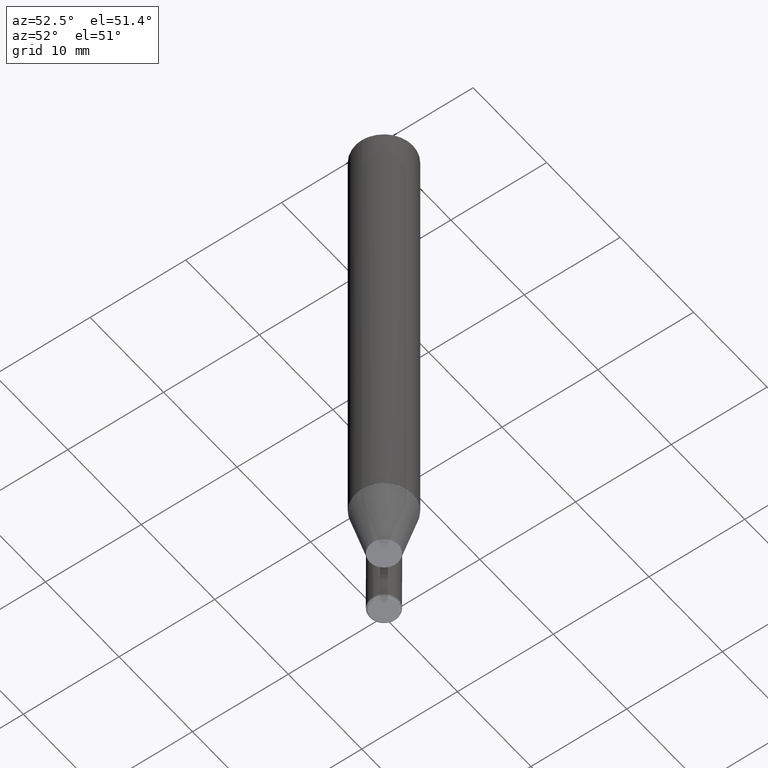
[diagram: clean part render]
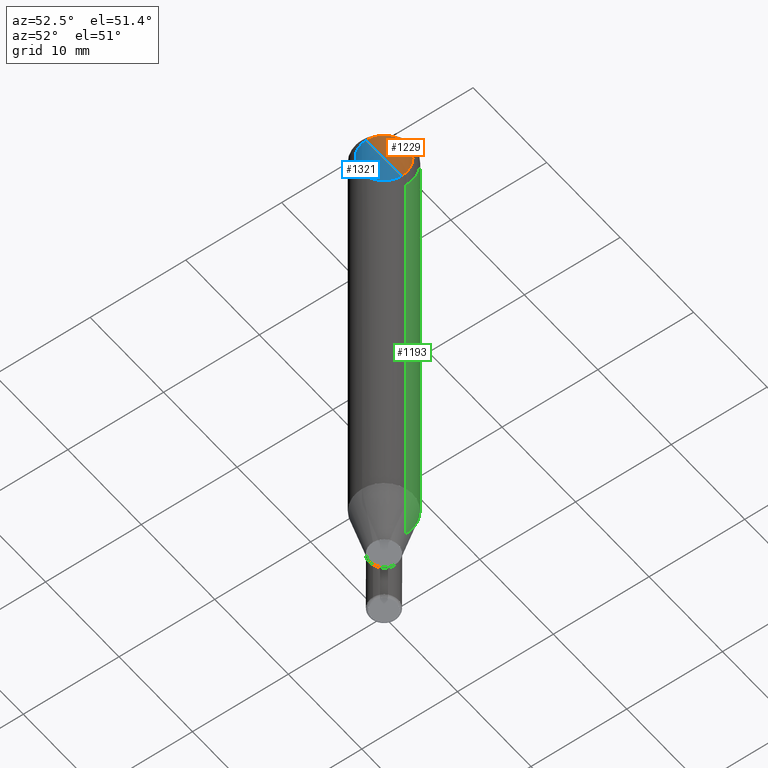
[diagram: same view with three faces highlighted in distinct colors, each labeled with its STEP entity id]
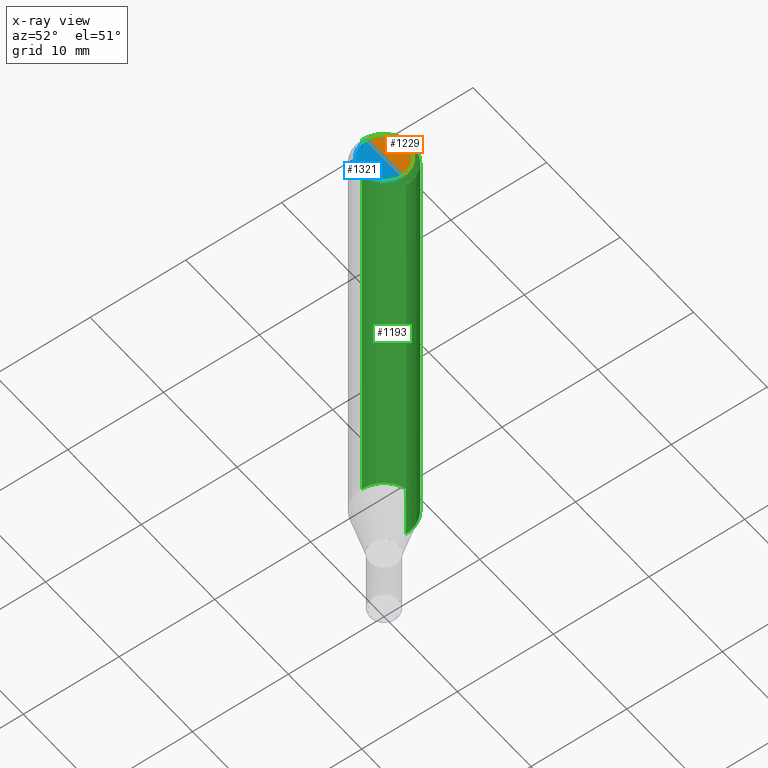
[diagram: x-ray of the same camera — body ghosted, the three highlighted faces saturated]
A machine part, auxiliary view with three faces highlighted in distinct colors.
The next image is the same camera in x-ray (body ghosted, the three faces saturated) — at least one of them is partly hidden behind the body in this view.
Their STEP definitions:

[orange] entity #1229 — the highlighted face is a freeform B-spline surface patch.
#966=CARTESIAN_POINT('',(2.4,0.0,46.901923788647));
#967=CARTESIAN_POINT('',(2.4,2.4,46.901923788647));
#968=CARTESIAN_POINT('',(0.0,2.4,46.901923788647));
#969=CARTESIAN_POINT('',(-2.4,2.4,46.901923788647));
#970=CARTESIAN_POINT('',(-2.4,0.0,46.901923788647));
#971=CARTESIAN_POINT('',(0.0,0.0,46.901923788647));
#1214=(
BOUNDED_SURFACE()
B_SPLINE_SURFACE(1,2,(
(#966,#967,#968,#969,#970),
(#971,#971,#971,#971,#971)
), .UNSPECIFIED.,.F.,.F.,.F.)
B_SPLINE_SURFACE_WITH_KNOTS((2,2),(3,2,3),(
0.0,1.0),(
0.0,0.5,1.0), .UNSPECIFIED.)
GEOMETRIC_REPRESENTATION_ITEM()
RATIONAL_B_SPLINE_SURFACE(((1.0,0.707106781187,1.0,0.707106781187,1.0),
(1.0,0.707106781187,1.0,0.707106781187,1.0)
))
REPRESENTATION_ITEM('')
SURFACE()
);
#1215=(
BOUNDED_CURVE()
B_SPLINE_CURVE(1,(#971,#966),.UNSPECIFIED.,.F.,.F.)
B_SPLINE_CURVE_WITH_KNOTS((2,2),
(0.0,1.0),.UNSPECIFIED.)
CURVE()
GEOMETRIC_REPRESENTATION_ITEM()
RATIONAL_B_SPLINE_CURVE((1.0,1.0))
REPRESENTATION_ITEM('')
);
#1216=(
BOUNDED_CURVE()
B_SPLINE_CURVE(2,(#966,#967,#968,#969,#970),.UNSPECIFIED.,.F.,.F.)
B_SPLINE_CURVE_WITH_KNOTS((3,2,3),
(0.0,0.5,1.0),.UNSPECIFIED.)
CURVE()
GEOMETRIC_REPRESENTATION_ITEM()
RATIONAL_B_SPLINE_CURVE((1.0,0.707106781187,1.0,0.707106781187,1.0))
REPRESENTATION_ITEM('')
);
#1217=(
BOUNDED_CURVE()
B_SPLINE_CURVE(1,(#970,#971),.UNSPECIFIED.,.F.,.F.)
B_SPLINE_CURVE_WITH_KNOTS((2,2),
(0.0,1.0),.UNSPECIFIED.)
CURVE()
GEOMETRIC_REPRESENTATION_ITEM()
RATIONAL_B_SPLINE_CURVE((1.0,1.0))
REPRESENTATION_ITEM('')
);
#1218=VERTEX_POINT('',#966);
#1219=VERTEX_POINT('',#970);
#1220=VERTEX_POINT('',#971);
#1221=EDGE_CURVE('',#1220,#1218,#1215,.T.);
#1222=EDGE_CURVE('',#1218,#1219,#1216,.T.);
#1223=EDGE_CURVE('',#1219,#1220,#1217,.T.);
#1224=ORIENTED_EDGE('',*,*,#1221,.T.);
#1225=ORIENTED_EDGE('',*,*,#1222,.T.);
#1226=ORIENTED_EDGE('',*,*,#1223,.T.);
#1227=EDGE_LOOP('',(#1224,#1225,#1226));
#1228=FACE_OUTER_BOUND('',#1227,.T.);
#1229=ADVANCED_FACE('',(#1228),#1214,.T.);

[blue] entity #1321 — the highlighted face is a freeform B-spline surface patch.
#966=CARTESIAN_POINT('',(2.4,0.0,46.901923788647));
#970=CARTESIAN_POINT('',(-2.4,0.0,46.901923788647));
#971=CARTESIAN_POINT('',(0.0,0.0,46.901923788647));
#978=CARTESIAN_POINT('',(-2.4,-2.4,46.901923788647));
#979=CARTESIAN_POINT('',(0.0,-2.4,46.901923788647));
#980=CARTESIAN_POINT('',(2.4,-2.4,46.901923788647));
#1306=(
BOUNDED_SURFACE()
B_SPLINE_SURFACE(1,2,(
(#970,#978,#979,#980,#966),
(#971,#971,#971,#971,#971)
), .UNSPECIFIED.,.F.,.F.,.F.)
B_SPLINE_SURFACE_WITH_KNOTS((2,2),(3,2,3),(
0.0,1.0),(
0.0,0.5,1.0), .UNSPECIFIED.)
GEOMETRIC_REPRESENTATION_ITEM()
RATIONAL_B_SPLINE_SURFACE(((1.0,0.707106781187,1.0,0.707106781187,1.0),
(1.0,0.707106781187,1.0,0.707106781187,1.0)
))
REPRESENTATION_ITEM('')
SURFACE()
);
#1307=(
BOUNDED_CURVE()
B_SPLINE_CURVE(1,(#971,#966),.UNSPECIFIED.,.F.,.F.)
B_SPLINE_CURVE_WITH_KNOTS((2,2),
(0.0,1.0),.UNSPECIFIED.)
CURVE()
GEOMETRIC_REPRESENTATION_ITEM()
RATIONAL_B_SPLINE_CURVE((1.0,1.0))
REPRESENTATION_ITEM('')
);
#1308=(
BOUNDED_CURVE()
B_SPLINE_CURVE(2,(#966,#980,#979,#978,#970),.UNSPECIFIED.,.F.,.F.)
B_SPLINE_CURVE_WITH_KNOTS((3,2,3),
(0.0,0.5,1.0),.UNSPECIFIED.)
CURVE()
GEOMETRIC_REPRESENTATION_ITEM()
RATIONAL_B_SPLINE_CURVE((1.0,0.707106781187,1.0,0.707106781187,1.0))
REPRESENTATION_ITEM('')
);
#1309=(
BOUNDED_CURVE()
B_SPLINE_CURVE(1,(#970,#971),.UNSPECIFIED.,.F.,.F.)
B_SPLINE_CURVE_WITH_KNOTS((2,2),
(0.0,1.0),.UNSPECIFIED.)
CURVE()
GEOMETRIC_REPRESENTATION_ITEM()
RATIONAL_B_SPLINE_CURVE((1.0,1.0))
REPRESENTATION_ITEM('')
);
#1310=VERTEX_POINT('',#966);
#1311=VERTEX_POINT('',#970);
#1312=VERTEX_POINT('',#971);
#1313=EDGE_CURVE('',#1312,#1310,#1307,.T.);
#1314=EDGE_CURVE('',#1310,#1311,#1308,.T.);
#1315=EDGE_CURVE('',#1311,#1312,#1309,.T.);
#1316=ORIENTED_EDGE('',*,*,#1313,.T.);
#1317=ORIENTED_EDGE('',*,*,#1314,.T.);
#1318=ORIENTED_EDGE('',*,*,#1315,.T.);
#1319=EDGE_LOOP('',(#1316,#1317,#1318));
#1320=FACE_OUTER_BOUND('',#1319,.T.);
#1321=ADVANCED_FACE('',(#1320),#1306,.T.);

[green] entity #1193 — the highlighted face is a freeform B-spline surface patch.
#956=CARTESIAN_POINT('',(3.0,0.0,-0.0));
#957=CARTESIAN_POINT('',(3.0,3.0,-0.0));
#958=CARTESIAN_POINT('',(0.0,3.0,-0.0));
#959=CARTESIAN_POINT('',(-3.0,3.0,-0.0));
#960=CARTESIAN_POINT('',(-3.0,0.0,-0.0));
#961=CARTESIAN_POINT('',(3.0,0.0,46.301923788647));
#962=CARTESIAN_POINT('',(3.0,3.0,46.301923788647));
#963=CARTESIAN_POINT('',(0.0,3.0,46.301923788647));
#964=CARTESIAN_POINT('',(-3.0,3.0,46.301923788647));
#965=CARTESIAN_POINT('',(-3.0,0.0,46.301923788647));
#1174=(
BOUNDED_SURFACE()
B_SPLINE_SURFACE(1,2,(
(#956,#957,#958,#959,#960),
(#961,#962,#963,#964,#965)
), .UNSPECIFIED.,.F.,.F.,.F.)
B_SPLINE_SURFACE_WITH_KNOTS((2,2),(3,2,3),(
0.0,1.0),(
0.0,0.5,1.0), .UNSPECIFIED.)
GEOMETRIC_REPRESENTATION_ITEM()
RATIONAL_B_SPLINE_SURFACE(((1.0,0.707106781187,1.0,0.707106781187,1.0),
(1.0,0.707106781187,1.0,0.707106781187,1.0)
))
REPRESENTATION_ITEM('')
SURFACE()
);
#1175=(
BOUNDED_CURVE()
B_SPLINE_CURVE(2,(#961,#962,#963,#964,#965),.UNSPECIFIED.,.F.,.F.)
B_SPLINE_CURVE_WITH_KNOTS((3,2,3),
(0.0,0.5,1.0),.UNSPECIFIED.)
CURVE()
GEOMETRIC_REPRESENTATION_ITEM()
RATIONAL_B_SPLINE_CURVE((1.0,0.707106781187,1.0,0.707106781187,1.0))
REPRESENTATION_ITEM('')
);
#1176=(
BOUNDED_CURVE()
B_SPLINE_CURVE(1,(#965,#960),.UNSPECIFIED.,.F.,.F.)
B_SPLINE_CURVE_WITH_KNOTS((2,2),
(0.0,1.0),.UNSPECIFIED.)
CURVE()
GEOMETRIC_REPRESENTATION_ITEM()
RATIONAL_B_SPLINE_CURVE((1.0,1.0))
REPRESENTATION_ITEM('')
);
#1177=(
BOUNDED_CURVE()
B_SPLINE_CURVE(2,(#960,#959,#958,#957,#956),.UNSPECIFIED.,.F.,.F.)
B_SPLINE_CURVE_WITH_KNOTS((3,2,3),
(0.0,0.5,1.0),.UNSPECIFIED.)
CURVE()
GEOMETRIC_REPRESENTATION_ITEM()
RATIONAL_B_SPLINE_CURVE((1.0,0.707106781187,1.0,0.707106781187,1.0))
REPRESENTATION_ITEM('')
);
#1178=(
BOUNDED_CURVE()
B_SPLINE_CURVE(1,(#956,#961),.UNSPECIFIED.,.F.,.F.)
B_SPLINE_CURVE_WITH_KNOTS((2,2),
(0.0,1.0),.UNSPECIFIED.)
CURVE()
GEOMETRIC_REPRESENTATION_ITEM()
RATIONAL_B_SPLINE_CURVE((1.0,1.0))
REPRESENTATION_ITEM('')
);
#1179=VERTEX_POINT('',#956);
#1180=VERTEX_POINT('',#960);
#1181=VERTEX_POINT('',#961);
#1182=VERTEX_POINT('',#965);
#1183=EDGE_CURVE('',#1181,#1182,#1175,.T.);
#1184=EDGE_CURVE('',#1182,#1180,#1176,.T.);
#1185=EDGE_CURVE('',#1180,#1179,#1177,.T.);
#1186=EDGE_CURVE('',#1179,#1181,#1178,.T.);
#1187=ORIENTED_EDGE('',*,*,#1183,.T.);
#1188=ORIENTED_EDGE('',*,*,#1184,.T.);
#1189=ORIENTED_EDGE('',*,*,#1185,.T.);
#1190=ORIENTED_EDGE('',*,*,#1186,.T.);
#1191=EDGE_LOOP('',(#1187,#1188,#1189,#1190));
#1192=FACE_OUTER_BOUND('',#1191,.T.);
#1193=ADVANCED_FACE('',(#1192),#1174,.T.);